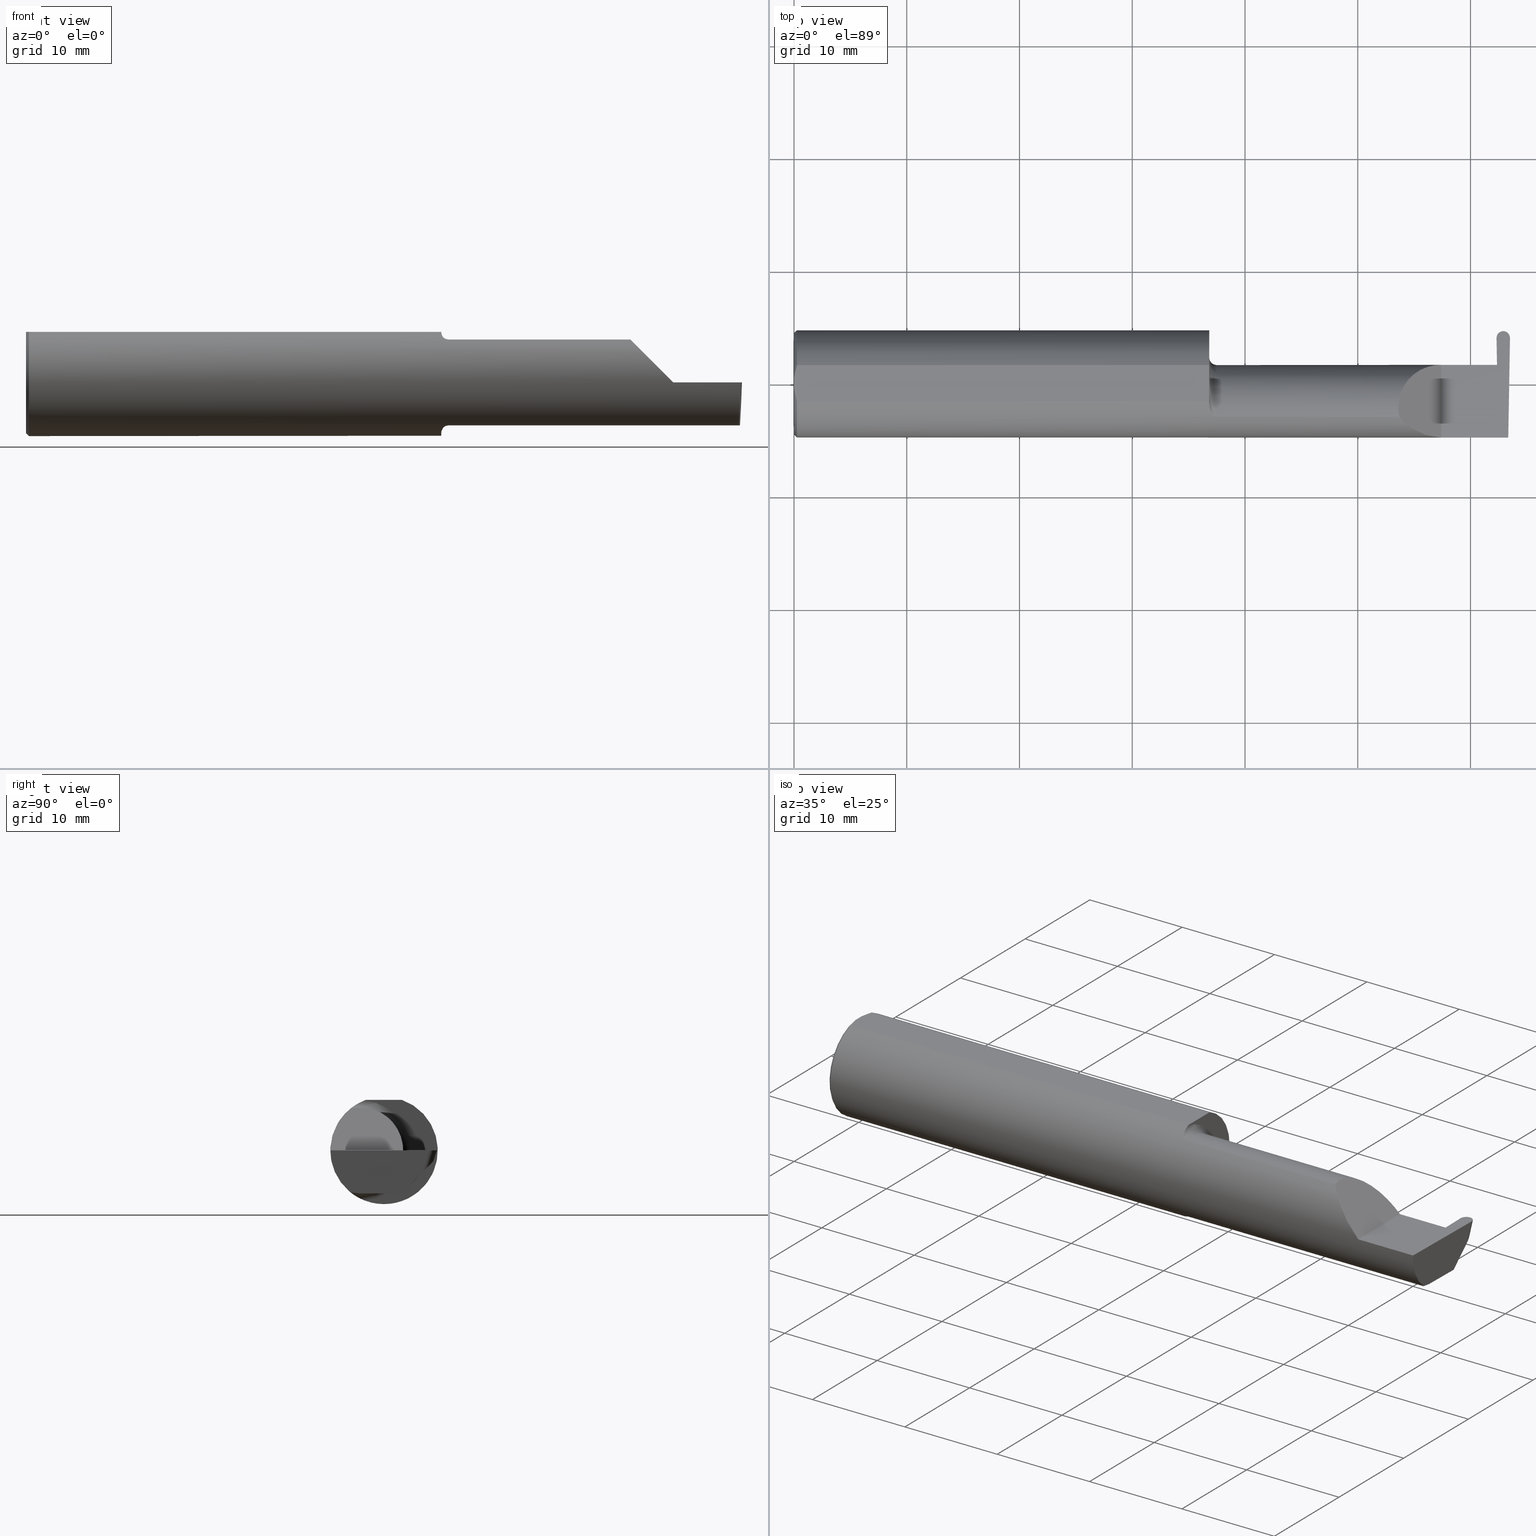
[diagram: canonical four-view strip — front | top / right | iso, engineering-drawing reading convention]
A machine part, canonical four-view strip (front | top / right | iso — engineering-drawing reading convention). The complete STEP part file that produces these views, byte-faithful:
ISO-10303-21;
HEADER;
FILE_DESCRIPTION (( 'STEP AP203' ),
    '1' );
FILE_NAME ('222110-GFR046-16.STEP',
    '2024-06-21T22:54:51',
    ( '' ),
    ( '' ),
    'SwSTEP 2.0',
    'SolidWorks 2022',
    '' );
FILE_SCHEMA (( 'CONFIG_CONTROL_DESIGN' ));
ENDSEC;

DATA;
#1 = ORIENTED_EDGE ( 'NONE', *, *, #245, .F. ) ;
#2 = EDGE_CURVE ( 'NONE', #489, #502, #172, .T. ) ;
#3 = DIRECTION ( 'NONE',  ( 0.000000000000000000, -0.03489949670250104552, -0.9993908270190957621 ) ) ;
#4 = DIRECTION ( 'NONE',  ( 0.000000000000000000, 1.000000000000000000, 0.000000000000000000 ) ) ;
#5 = ORIENTED_EDGE ( 'NONE', *, *, #625, .F. ) ;
#6 = FACE_OUTER_BOUND ( 'NONE', #439, .T. ) ;
#7 = CARTESIAN_POINT ( 'NONE',  ( 0.000000000000000000, 0.000000000000000000, 0.000000000000000000 ) ) ;
#8 = CARTESIAN_POINT ( 'NONE',  ( 2.499991330919623778, 0.1598853660763216722, 0.0002712393593816795224 ) ) ;
#9 = LINE ( 'NONE', #81, #149 ) ;
#10 = PLANE ( 'NONE',  #147 ) ;
#11 = CC_DESIGN_APPROVAL ( #573, ( #691 ) ) ;
#12 = LINE ( 'NONE', #443, #138 ) ;
#13 = PLANE ( 'NONE',  #49 ) ;
#14 = EDGE_CURVE ( 'NONE', #25, #652, #151, .T. ) ;
#15 = CIRCLE ( 'NONE', #602, 0.1873499999999999888 ) ;
#16 = FACE_OUTER_BOUND ( 'NONE', #305, .T. ) ;
#17 = DIRECTION ( 'NONE',  ( 0.000000000000000000, 0.000000000000000000, -1.000000000000000000 ) ) ;
#18 = LOCAL_TIME ( 15, 54, 51.00000000000000000, #249 ) ;
#19 = CARTESIAN_POINT ( 'NONE',  ( 2.460115337567889249, -0.08334999999999999354, -0.1499999999999999944 ) ) ;
#20 = EDGE_CURVE ( 'NONE', #332, #65, #523, .T. ) ;
#21 = CARTESIAN_POINT ( 'NONE',  ( 0.01000000000000013205, 0.000000000000000000, 0.000000000000000000 ) ) ;
#22 = APPROVAL_ROLE ( '' ) ;
#23 = CARTESIAN_POINT ( 'NONE',  ( 1.465004157323697376, -0.1137044537483316020, 0.1489098419202428691 ) ) ;
#24 = APPROVAL ( #465, 'UNSPECIFIED' ) ;
#25 = VERTEX_POINT ( 'NONE', #195 ) ;
#26 = CARTESIAN_POINT ( 'NONE',  ( 2.490497255146305822, -0.08335000000000003517, -0.1500000000000000500 ) ) ;
#27 = CARTESIAN_POINT ( 'NONE',  ( 1.450000000000000178, 0.000000000000000000, 0.000000000000000000 ) ) ;
#28 = ORIENTED_EDGE ( 'NONE', *, *, #253, .T. ) ;
#29 = DATE_AND_TIME ( #197, #18 ) ;
#30 = AXIS2_PLACEMENT_3D ( 'NONE', #290, #546, #237 ) ;
#31 = VERTEX_POINT ( 'NONE', #35 ) ;
#32 = VECTOR ( 'NONE', #115, 39.37007874015748143 ) ;
#33 = APPLICATION_PROTOCOL_DEFINITION ( 'international standard', 'config_control_design', 1994, #429 ) ;
#34 = EDGE_LOOP ( 'NONE', ( #569, #333, #54, #383, #282, #417 ) ) ;
#35 = CARTESIAN_POINT ( 'NONE',  ( 1.474999999999999867, -0.1172600179964005812, -0.1461167706989303650 ) ) ;
#36 = PERSON_AND_ORGANIZATION_ROLE ( 'design_owner' ) ;
#37 = EDGE_CURVE ( 'NONE', #70, #580, #574, .T. ) ;
#38 = ORIENTED_EDGE ( 'NONE', *, *, #693, .T. ) ;
#39 = EDGE_CURVE ( 'NONE', #31, #238, #110, .T. ) ;
#40 = EDGE_CURVE ( 'NONE', #251, #424, #516, .T. ) ;
#41 = CARTESIAN_POINT ( 'NONE',  ( 1.450000000000000178, -0.06851976604679066440, -0.1743704796142198643 ) ) ;
#42 = ORIENTED_EDGE ( 'NONE', *, *, #345, .T. ) ;
#43 = CC_DESIGN_PERSON_AND_ORGANIZATION_ASSIGNMENT ( #405, #304, ( #375 ) ) ;
#44 = ORIENTED_EDGE ( 'NONE', *, *, #430, .T. ) ;
#45 = CARTESIAN_POINT ( 'NONE',  ( 2.490571174359867967, -0.07911517109126280090, -0.1500000000000000500 ) ) ;
#46 = CARTESIAN_POINT ( 'NONE',  ( 0.000000000000000000, 0.000000000000000000, 0.000000000000000000 ) ) ;
#47 = VERTEX_POINT ( 'NONE', #463 ) ;
#48 = AXIS2_PLACEMENT_3D ( 'NONE', #232, #188, #558 ) ;
#49 = AXIS2_PLACEMENT_3D ( 'NONE', #229, #224, #665 ) ;
#50 = PLANE ( 'NONE',  #699 ) ;
#51 = ORIENTED_EDGE ( 'NONE', *, *, #95, .T. ) ;
#52 = DIRECTION ( 'NONE',  ( 0.000000000000000000, -1.000000000000000000, 0.000000000000000000 ) ) ;
#53 = CARTESIAN_POINT ( 'NONE',  ( -0.001039370078739994957, 0.1846500000000000363, 0.000000000000000000 ) ) ;
#54 = ORIENTED_EDGE ( 'NONE', *, *, #514, .T. ) ;
#55 = CARTESIAN_POINT ( 'NONE',  ( 2.454605571778825102, 0.06664999999999998703, 0.000000000000000000 ) ) ;
#56 = CARTESIAN_POINT ( 'NONE',  ( 2.260000000000000231, -0.1873499999999999888, 2.939152317953647352E-17 ) ) ;
#57 = UNCERTAINTY_MEASURE_WITH_UNIT (LENGTH_MEASURE( 1.000000000000000082E-05 ), #171, 'distance_accuracy_value', 'NONE');
#58 = CARTESIAN_POINT ( 'NONE',  ( 2.472512750841366902, 0.1918129394110904828, 0.09809285817454170553 ) ) ;
#59 = VECTOR ( 'NONE', #547, 39.37007874015748143 ) ;
#60 = ORIENTED_EDGE ( 'NONE', *, *, #196, .T. ) ;
#61 = DIRECTION ( 'NONE',  ( 0.000000000000000000, 0.000000000000000000, -1.000000000000000000 ) ) ;
#62 = VECTOR ( 'NONE', #108, 39.37007874015748854 ) ;
#63 = CARTESIAN_POINT ( 'NONE',  ( 1.452945243422983035, -0.09312071749437417223, 0.1626553472577906556 ) ) ;
#64 = FACE_OUTER_BOUND ( 'NONE', #564, .T. ) ;
#65 = VERTEX_POINT ( 'NONE', #682 ) ;
#66 = ORIENTED_EDGE ( 'NONE', *, *, #2, .T. ) ;
#67 = DIRECTION ( 'NONE',  ( -0.000000000000000000, 1.000000000000000000, -0.000000000000000000 ) ) ;
#68 = CARTESIAN_POINT ( 'NONE',  ( 2.476480000000000459, 0.1722500154617881696, -0.03805303608136137439 ) ) ;
#69 = ADVANCED_FACE ( 'NONE', ( #686 ), #13, .T. ) ;
#70 = VERTEX_POINT ( 'NONE', #548 ) ;
#71 = DIRECTION ( 'NONE',  ( 5.107097978105302334E-17, -1.000000000000000000, 0.000000000000000000 ) ) ;
#72 = PLANE ( 'NONE',  #30 ) ;
#73 = DIRECTION ( 'NONE',  ( -1.000000000000000000, -0.000000000000000000, -0.000000000000000000 ) ) ;
#74 = VECTOR ( 'NONE', #452, 39.37007874015748854 ) ;
#75 = CARTESIAN_POINT ( 'NONE',  ( 2.459937291069381970, 0.06030305154315083321, -0.1499999999999999944 ) ) ;
#76 = CARTESIAN_POINT ( 'NONE',  ( 1.458475602106621638, -0.1064978748893405519, 0.1542035505680384444 ) ) ;
#77 = CC_DESIGN_APPROVAL ( #24, ( #132 ) ) ;
#78 = VERTEX_POINT ( 'NONE', #479 ) ;
#79 = CIRCLE ( 'NONE', #535, 0.1773499999999999521 ) ;
#80 = LINE ( 'NONE', #8, #588 ) ;
#81 = CARTESIAN_POINT ( 'NONE',  ( 2.472512750841366902, 0.2141627675440266054, 0.09083095880673042188 ) ) ;
#82 = EDGE_LOOP ( 'NONE', ( #666, #38, #638, #28, #582 ) ) ;
#83 =( BOUNDED_CURVE ( )  B_SPLINE_CURVE ( 3, ( #559, #386, #186, #26 ),
 .UNSPECIFIED., .F., .T. ) 
 B_SPLINE_CURVE_WITH_KNOTS ( ( 4, 4 ),
 ( 0.2354267821558766738, 0.4634648172053205673 ),
 .UNSPECIFIED. ) 
 CURVE ( )  GEOMETRIC_REPRESENTATION_ITEM ( )  RATIONAL_B_SPLINE_CURVE ( ( 1.000000000000000000, 0.9956712472009929815, 0.9956712472009929815, 1.000000000000000000 ) ) 
 REPRESENTATION_ITEM ( '' )  );
#84 = APPROVAL_ROLE ( '' ) ;
#85 = ORIENTED_EDGE ( 'NONE', *, *, #444, .F. ) ;
#86 = DIRECTION ( 'NONE',  ( -0.01745240643727800564, 0.9998476951563912696, -0.000000000000000000 ) ) ;
#87 = APPLICATION_PROTOCOL_DEFINITION ( 'international standard', 'config_control_design', 1994, #399 ) ;
#88 = VECTOR ( 'NONE', #620, 39.37007874015748854 ) ;
#89 = VECTOR ( 'NONE', #488, 39.37007874015748143 ) ;
#90 = CARTESIAN_POINT ( 'NONE',  ( 2.113883229301068312, -0.1172600179964011224, 0.1461167706989300596 ) ) ;
#91 = APPROVAL_STATUS ( 'not_yet_approved' ) ;
#92 = EDGE_CURVE ( 'NONE', #65, #489, #177, .T. ) ;
#93 = CARTESIAN_POINT ( 'NONE',  ( 1.458439486659307338, -0.1064616213911158682, -0.1542305641651500470 ) ) ;
#94 = PERSON_AND_ORGANIZATION_ROLE ( 'creator' ) ;
#95 = EDGE_CURVE ( 'NONE', #122, #191, #79, .T. ) ;
#96 = ORIENTED_EDGE ( 'NONE', *, *, #514, .F. ) ;
#97 = CARTESIAN_POINT ( 'NONE',  ( 1.452960551809340473, -0.09317341542745746774, -0.1626248379125196930 ) ) ;
#98 = APPROVAL ( #91, 'UNSPECIFIED' ) ;
#99 = ORIENTED_EDGE ( 'NONE', *, *, #126, .F. ) ;
#100 = ORIENTED_EDGE ( 'NONE', *, *, #37, .F. ) ;
#101 = CARTESIAN_POINT ( 'NONE',  ( 2.476480000000000459, 0.1722500154617881696, -0.03805303608136137439 ) ) ;
#102 = ORIENTED_EDGE ( 'NONE', *, *, #370, .F. ) ;
#103 = CARTESIAN_POINT ( 'NONE',  ( 2.452725869110807366, 0.1743380937279881138, 2.910889271442055903E-18 ) ) ;
#104 = CC_DESIGN_SECURITY_CLASSIFICATION ( #691, ( #375 ) ) ;
#105 = ORIENTED_EDGE ( 'NONE', *, *, #670, .F. ) ;
#106 = VECTOR ( 'NONE', #532, 39.37007874015748854 ) ;
#107 = CARTESIAN_POINT ( 'NONE',  ( 2.493920841729410753, -0.1873499999999999888, 0.000000000000000000 ) ) ;
#108 = DIRECTION ( 'NONE',  ( -0.001239419280281356568, 0.9999992319196288060, -7.696171051551530993E-21 ) ) ;
#109 = ORIENTED_EDGE ( 'NONE', *, *, #95, .F. ) ;
#110 = B_SPLINE_CURVE_WITH_KNOTS ( 'NONE', 3,
 ( #407, #466, #687, #412, #355, #93, #627, #97, #626, #193, #307, #41 ),
 .UNSPECIFIED., .F., .F.,
 ( 4, 2, 2, 2, 2, 4 ),
 ( 1.967976973658592312E-07, 0.0002120314145722273266, 0.0004238660314470887587, 0.0008475352651967989377, 0.001271204498946509279, 0.001694873732696219621 ),
 .UNSPECIFIED. ) ;
#111 = ADVANCED_FACE ( 'NONE', ( #264 ), #50, .F. ) ;
#112 = CARTESIAN_POINT ( 'NONE',  ( 0.000000000000000000, 0.000000000000000000, 0.000000000000000000 ) ) ;
#113 = DIRECTION ( 'NONE',  ( -1.000000000000000000, -0.000000000000000000, -0.000000000000000000 ) ) ;
#114 = EDGE_CURVE ( 'NONE', #78, #278, #483, .T. ) ;
#115 = DIRECTION ( 'NONE',  ( -0.000000000000000000, 1.000000000000000000, -0.000000000000000000 ) ) ;
#116 = ORIENTED_EDGE ( 'NONE', *, *, #306, .F. ) ;
#117 = B_SPLINE_CURVE_WITH_KNOTS ( 'NONE', 3,
 ( #396, #280, #605, #615 ),
 .UNSPECIFIED., .F., .F.,
 ( 4, 4 ),
 ( 0.000000000000000000, 1.000000000000000000 ),
 .UNSPECIFIED. ) ;
#118 = DIRECTION ( 'NONE',  ( -0.03549161113179515048, 0.03487750912278131388, 0.9987611851171729338 ) ) ;
#119 = CARTESIAN_POINT ( 'NONE',  ( 1.450353553376444893, -0.07868116735658675642, 0.1701139256562800572 ) ) ;
#120 = CARTESIAN_POINT ( 'NONE',  ( 0.005151108632379722968, -0.04888864921576022843, 0.1763499999999999235 ) ) ;
#121 = AXIS2_PLACEMENT_3D ( 'NONE', #27, #454, #673 ) ;
#122 = VERTEX_POINT ( 'NONE', #530 ) ;
#123 = LINE ( 'NONE', #384, #347 ) ;
#124 = AXIS2_PLACEMENT_3D ( 'NONE', #377, #221, #154 ) ;
#125 = LINE ( 'NONE', #335, #88 ) ;
#126 = EDGE_CURVE ( 'NONE', #203, #332, #700, .T. ) ;
#127 = EDGE_LOOP ( 'NONE', ( #291, #256, #492, #265 ) ) ;
#128 = CARTESIAN_POINT ( 'NONE',  ( 2.260000000000000231, -0.1873499999999999888, 2.939152317953647352E-17 ) ) ;
#129 = APPROVAL_DATE_TIME ( #614, #573 ) ;
#130 = DIRECTION ( 'NONE',  ( -0.7071067811865509034, 0.000000000000000000, 0.7071067811865440200 ) ) ;
#131 = LINE ( 'NONE', #234, #648 ) ;
#132 = PRODUCT_DEFINITION ( 'UNKNOWN', '', #375, #226 ) ;
#133 = CARTESIAN_POINT ( 'NONE',  ( 2.496943030093102145, 0.1354885203010862682, -0.07481453124206370597 ) ) ;
#134 = CARTESIAN_POINT ( 'NONE',  ( 2.473071381531744883, 0.1327807391157157513, -0.08358957283776476122 ) ) ;
#135 = FACE_OUTER_BOUND ( 'NONE', #34, .T. ) ;
#136 = ORIENTED_EDGE ( 'NONE', *, *, #308, .T. ) ;
#137 = CARTESIAN_POINT ( 'NONE',  ( 2.733184360054361939, -0.08335000000000003517, -0.1500000000000000500 ) ) ;
#138 = VECTOR ( 'NONE', #336, 39.37007874015748143 ) ;
#139 = CARTESIAN_POINT ( 'NONE',  ( 2.499980319257137484, 0.1597972350660649687, 0.000000000000000000 ) ) ;
#140 = COORDINATED_UNIVERSAL_TIME_OFFSET ( 8, 0, .BEHIND. ) ;
#141 = DIRECTION ( 'NONE',  ( 1.000000000000000000, 0.000000000000000000, -0.000000000000000000 ) ) ;
#142 = ORIENTED_EDGE ( 'NONE', *, *, #537, .F. ) ;
#143 = PERSON_AND_ORGANIZATION_ROLE ( 'classification_officer' ) ;
#144 = CARTESIAN_POINT ( 'NONE',  ( 2.452963582209922055, 0.1607195194005952010, 0.000000000000000000 ) ) ;
#145 = VERTEX_POINT ( 'NONE', #161 ) ;
#146 = CALENDAR_DATE ( 2024, 21, 6 ) ;
#147 = AXIS2_PLACEMENT_3D ( 'NONE', #7, #284, #184 ) ;
#148 = EDGE_CURVE ( 'NONE', #259, #25, #246, .T. ) ;
#149 = VECTOR ( 'NONE', #338, 39.37007874015748854 ) ;
#150 = ORIENTED_EDGE ( 'NONE', *, *, #469, .T. ) ;
#151 =( BOUNDED_CURVE ( )  B_SPLINE_CURVE ( 3, ( #90, #683, #520, #464 ),
 .UNSPECIFIED., .F., .F. ) 
 B_SPLINE_CURVE_WITH_KNOTS ( ( 4, 4 ),
 ( 6.055147272130139591, 7.853981633974482790 ),
 .UNSPECIFIED. ) 
 CURVE ( )  GEOMETRIC_REPRESENTATION_ITEM ( )  RATIONAL_B_SPLINE_CURVE ( ( 1.000000000000000000, 0.7480442670255260662, 0.7480442670255260662, 1.000000000000000000 ) ) 
 REPRESENTATION_ITEM ( '' )  );
#152 = CIRCLE ( 'NONE', #544, 0.1873499999999999888 ) ;
#153 = AXIS2_PLACEMENT_3D ( 'NONE', #173, #639, #428 ) ;
#154 = DIRECTION ( 'NONE',  ( -1.000000000000000000, 0.000000000000000000, 1.224646799147353947E-16 ) ) ;
#155 = EDGE_LOOP ( 'NONE', ( #102, #474, #415, #704 ) ) ;
#156 = DIRECTION ( 'NONE',  ( 0.000000000000000000, -0.9510565162951534202, 0.3090169943749480619 ) ) ;
#157 = CARTESIAN_POINT ( 'NONE',  ( 0.01000000000000013205, -0.06325108694718235836, 0.1763499999999999235 ) ) ;
#158 = ORIENTED_EDGE ( 'NONE', *, *, #212, .T. ) ;
#159 = DIRECTION ( 'NONE',  ( 1.000000000000000000, 9.674096982053045718E-15, -0.000000000000000000 ) ) ;
#160 = ADVANCED_FACE ( 'NONE', ( #381 ), #218, .T. ) ;
#161 = CARTESIAN_POINT ( 'NONE',  ( 1.474999999999999867, -0.1172600179964005812, 0.1461167706989303927 ) ) ;
#162 = ORIENTED_EDGE ( 'NONE', *, *, #565, .F. ) ;
#163 = VECTOR ( 'NONE', #285, 39.37007874015748143 ) ;
#164 = DIRECTION ( 'NONE',  ( -0.03701368837992397021, -0.7066222423871549863, -0.7066222423871630909 ) ) ;
#165 = VECTOR ( 'NONE', #667, 39.37007874015748143 ) ;
#166 = CARTESIAN_POINT ( 'NONE',  ( 2.476200268257601422, 0.1846500000000000363, 0.000000000000000000 ) ) ;
#167 = EDGE_CURVE ( 'NONE', #274, #251, #589, .T. ) ;
#168 = CARTESIAN_POINT ( 'NONE',  ( 0.01000000000000013205, -0.06325108694718235836, 0.1763499999999999235 ) ) ;
#169 = VERTEX_POINT ( 'NONE', #157 ) ;
#170 = DIRECTION ( 'NONE',  ( 0.000000000000000000, 0.000000000000000000, -1.000000000000000000 ) ) ;
#171 =( CONVERSION_BASED_UNIT ( 'INCH', #276 ) LENGTH_UNIT ( ) NAMED_UNIT ( #577 ) );
#172 =( BOUNDED_CURVE ( )  B_SPLINE_CURVE ( 3, ( #230, #608, #612, #133 ),
 .UNSPECIFIED., .F., .T. ) 
 B_SPLINE_CURVE_WITH_KNOTS ( ( 4, 4 ),
 ( 3.175776140005400983, 4.698536687208078710 ),
 .UNSPECIFIED. ) 
 CURVE ( )  GEOMETRIC_REPRESENTATION_ITEM ( )  RATIONAL_B_SPLINE_CURVE ( ( 1.000000000000000000, 0.8159229469975433080, 0.8159229469975433080, 1.000000000000000000 ) ) 
 REPRESENTATION_ITEM ( '' )  );
#173 = CARTESIAN_POINT ( 'NONE',  ( 1.450000000000000178, -0.08335000000000004905, 0.000000000000000000 ) ) ;
#174 = ORIENTED_EDGE ( 'NONE', *, *, #14, .F. ) ;
#175 = CARTESIAN_POINT ( 'NONE',  ( 0.000000000000000000, 0.000000000000000000, -0.1773499999999999521 ) ) ;
#176 = CARTESIAN_POINT ( 'NONE',  ( 1.474999999999999867, -0.1172600179964005812, 0.1461167706989303927 ) ) ;
#177 =( BOUNDED_CURVE ( )  B_SPLINE_CURVE ( 3, ( #210, #581, #584, #365 ),
 .UNSPECIFIED., .F., .F. ) 
 B_SPLINE_CURVE_WITH_KNOTS ( ( 4, 4 ),
 ( 1.570796326794878794, 1.624635715067310082 ),
 .UNSPECIFIED. ) 
 CURVE ( )  GEOMETRIC_REPRESENTATION_ITEM ( )  RATIONAL_B_SPLINE_CURVE ( ( 1.000000000000000000, 0.9997584579429215079, 0.9997584579429215079, 1.000000000000000000 ) ) 
 REPRESENTATION_ITEM ( '' )  );
#178 = CARTESIAN_POINT ( 'NONE',  ( 0.000000000000000000, 0.06325108694718235836, 0.1763499999999999235 ) ) ;
#179 = ORIENTED_EDGE ( 'NONE', *, *, #311, .T. ) ;
#180 = AXIS2_PLACEMENT_3D ( 'NONE', #134, #557, #236 ) ;
#181 = FACE_OUTER_BOUND ( 'NONE', #633, .T. ) ;
#182 = LINE ( 'NONE', #393, #74 ) ;
#183 = CARTESIAN_POINT ( 'NONE',  ( 2.476759731742398163, 0.1846500000000000363, 0.000000000000000000 ) ) ;
#184 = DIRECTION ( 'NONE',  ( 0.000000000000000000, 0.000000000000000000, -1.000000000000000000 ) ) ;
#185 = ORIENTED_EDGE ( 'NONE', *, *, #357, .F. ) ;
#186 = CARTESIAN_POINT ( 'NONE',  ( 2.490297801769516539, -0.09477667630339423055, -0.1499999999999999944 ) ) ;
#187 = CARTESIAN_POINT ( 'NONE',  ( 1.450000000000000178, -0.08335000000000004905, 0.000000000000000000 ) ) ;
#188 = DIRECTION ( 'NONE',  ( -0.9992386149554827179, 0.01744177490282240728, 0.03489949670250104552 ) ) ;
#189 = ADVANCED_FACE ( 'NONE', ( #594 ), #368, .F. ) ;
#190 = PLANE ( 'NONE',  #361 ) ;
#191 = VERTEX_POINT ( 'NONE', #323 ) ;
#192 = EDGE_CURVE ( 'NONE', #681, #489, #294, .T. ) ;
#193 = CARTESIAN_POINT ( 'NONE',  ( 1.450358271039144054, -0.07873626113568082951, -0.1700887912276896341 ) ) ;
#194 = ORIENTED_EDGE ( 'NONE', *, *, #468, .T. ) ;
#195 = CARTESIAN_POINT ( 'NONE',  ( 2.113883229301068312, -0.1172600179964011224, 0.1461167706989300596 ) ) ;
#196 = EDGE_CURVE ( 'NONE', #122, #360, #596, .T. ) ;
#197 = CALENDAR_DATE ( 2024, 21, 6 ) ;
#198 = ORIENTED_EDGE ( 'NONE', *, *, #586, .T. ) ;
#199 = CARTESIAN_POINT ( 'NONE',  ( 2.473071381531744883, 0.1551305672486518739, -0.09085147220557604486 ) ) ;
#200 = CALENDAR_DATE ( 2024, 21, 6 ) ;
#201 = VECTOR ( 'NONE', #73, 39.37007874015748143 ) ;
#202 = CC_DESIGN_APPROVAL ( #98, ( #375 ) ) ;
#203 = VERTEX_POINT ( 'NONE', #166 ) ;
#204 = EDGE_LOOP ( 'NONE', ( #162, #495, #179, #707, #185, #590, #205, #1, #389, #211, #96, #5, #220 ) ) ;
#205 = ORIENTED_EDGE ( 'NONE', *, *, #392, .F. ) ;
#206 = CARTESIAN_POINT ( 'NONE',  ( 1.450000000000000178, 0.000000000000000000, 0.000000000000000000 ) ) ;
#207 = CARTESIAN_POINT ( 'NONE',  ( -0.001039370078739994957, 0.1723030515431495657, -0.03799999999999999906 ) ) ;
#208 = ORIENTED_EDGE ( 'NONE', *, *, #491, .F. ) ;
#209 = CARTESIAN_POINT ( 'NONE',  ( 2.490040979592266890, -0.1172600179964006090, -0.1461167706989303650 ) ) ;
#210 = CARTESIAN_POINT ( 'NONE',  ( 2.476480000000000015, 0.1824111880958903253, -0.006890354540110450732 ) ) ;
#211 = ORIENTED_EDGE ( 'NONE', *, *, #622, .T. ) ;
#212 = EDGE_CURVE ( 'NONE', #274, #476, #545, .T. ) ;
#213 = CYLINDRICAL_SURFACE ( 'NONE', #409, 0.02350000000000000352 ) ;
#214 = ADVANCED_FACE ( 'NONE', ( #706 ), #449, .T. ) ;
#215 = CARTESIAN_POINT ( 'NONE',  ( 2.454605571778825102, 0.06664999999999998703, 0.000000000000000000 ) ) ;
#216 = ADVANCED_FACE ( 'NONE', ( #6 ), #533, .F. ) ;
#217 = DIRECTION ( 'NONE',  ( 1.000000000000000000, 0.000000000000000000, 0.000000000000000000 ) ) ;
#218 = CYLINDRICAL_SURFACE ( 'NONE', #388, 0.1873499999999999888 ) ;
#219 = CARTESIAN_POINT ( 'NONE',  ( 2.447545874117295739, 0.06664999999999991764, 0.000000000000000000 ) ) ;
#220 = ORIENTED_EDGE ( 'NONE', *, *, #39, .F. ) ;
#221 = DIRECTION ( 'NONE',  ( -1.224646799147353947E-16, 0.000000000000000000, -1.000000000000000000 ) ) ;
#222 = CARTESIAN_POINT ( 'NONE',  ( 1.472161949849308371, -0.1172600179964060768, 0.1461167706989261184 ) ) ;
#223 = DIRECTION ( 'NONE',  ( 0.03858184836401778312, 0.3087869137032490108, 0.9503484007996426675 ) ) ;
#224 = DIRECTION ( 'NONE',  ( 1.000000000000000000, 5.107097978105302334E-17, 0.000000000000000000 ) ) ;
#225 = CARTESIAN_POINT ( 'NONE',  ( 2.454977397848501219, 0.06628460753894979685, -0.01046347106162132459 ) ) ;
#226 = DESIGN_CONTEXT ( 'detailed design', #429, 'design' ) ;
#227 = CARTESIAN_POINT ( 'NONE',  ( 2.876828993045917215, 0.1873499999999998500, 0.1763499999999999235 ) ) ;
#228 = DIRECTION ( 'NONE',  ( 1.000000000000000000, 0.000000000000000000, -0.000000000000000000 ) ) ;
#229 = CARTESIAN_POINT ( 'NONE',  ( 1.450000000000000178, 0.1873499999999998500, 0.000000000000000000 ) ) ;
#230 = CARTESIAN_POINT ( 'NONE',  ( 2.476480000000000459, 0.1722500154617881696, -0.03805303608136137439 ) ) ;
#231 = CARTESIAN_POINT ( 'NONE',  ( 2.454605571778825102, 0.06664999999999998703, 0.000000000000000000 ) ) ;
#232 = CARTESIAN_POINT ( 'NONE',  ( 2.499996417790078862, 0.1607195194005952565, 0.000000000000000000 ) ) ;
#233 = ORIENTED_EDGE ( 'NONE', *, *, #92, .F. ) ;
#234 = CARTESIAN_POINT ( 'NONE',  ( 2.450725024758243720, 0.2365161755066116367, 0.02621312396346279702 ) ) ;
#235 = ADVANCED_FACE ( 'NONE', ( #16 ), #481, .F. ) ;
#236 = DIRECTION ( 'NONE',  ( 0.000000000000000000, 0.9510565162951534202, -0.3090169943749478398 ) ) ;
#237 = DIRECTION ( 'NONE',  ( 0.03490480639812536257, 0.000000000000000000, -0.9993906415863165194 ) ) ;
#238 = VERTEX_POINT ( 'NONE', #390 ) ;
#239 = LINE ( 'NONE', #292, #163 ) ;
#240 = DIRECTION ( 'NONE',  ( 0.000000000000000000, -0.3090169943749481729, -0.9510565162951533091 ) ) ;
#241 = ORIENTED_EDGE ( 'NONE', *, *, #537, .T. ) ;
#242 = EDGE_CURVE ( 'NONE', #169, #451, #692, .T. ) ;
#243 = EDGE_LOOP ( 'NONE', ( #679, #297, #268, #44 ) ) ;
#244 = AXIS2_PLACEMENT_3D ( 'NONE', #316, #595, #702 ) ;
#245 = EDGE_CURVE ( 'NONE', #169, #419, #283, .T. ) ;
#246 =( BOUNDED_CURVE ( )  B_SPLINE_CURVE ( 3, ( #56, #328, #372, #267 ),
 .UNSPECIFIED., .F., .F. ) 
 B_SPLINE_CURVE_WITH_KNOTS ( ( 4, 4 ),
 ( 4.712388980384688786, 5.606916381293133966 ),
 .UNSPECIFIED. ) 
 CURVE ( )  GEOMETRIC_REPRESENTATION_ITEM ( )  RATIONAL_B_SPLINE_CURVE ( ( 1.000000000000000000, 0.9344226172588806500, 0.9344226172588806500, 1.000000000000000000 ) ) 
 REPRESENTATION_ITEM ( '' )  );
#247 = CARTESIAN_POINT ( 'NONE',  ( 2.499996417790078862, 0.1607195194005952565, 0.000000000000000000 ) ) ;
#248 = DIRECTION ( 'NONE',  ( -0.01745240643727575397, -0.9998476951563912696, 0.000000000000000000 ) ) ;
#249 = COORDINATED_UNIVERSAL_TIME_OFFSET ( 8, 0, .BEHIND. ) ;
#250 = AXIS2_PLACEMENT_3D ( 'NONE', #112, #482, #320 ) ;
#251 = VERTEX_POINT ( 'NONE', #231 ) ;
#252 = VECTOR ( 'NONE', #672, 39.37007874015748143 ) ;
#253 = EDGE_CURVE ( 'NONE', #484, #274, #609, .T. ) ;
#254 = ORIENTED_EDGE ( 'NONE', *, *, #468, .F. ) ;
#255 = ORIENTED_EDGE ( 'NONE', *, *, #192, .F. ) ;
#256 = ORIENTED_EDGE ( 'NONE', *, *, #253, .F. ) ;
#257 = CARTESIAN_POINT ( 'NONE',  ( 0.000000000000000000, -0.01880691362238934641, 0.1763499999999999235 ) ) ;
#258 = DIRECTION ( 'NONE',  ( 0.000000000000000000, -0.7071067811865434649, -0.7071067811865515695 ) ) ;
#259 = VERTEX_POINT ( 'NONE', #128 ) ;
#260 =( GEOMETRIC_REPRESENTATION_CONTEXT ( 3 ) GLOBAL_UNCERTAINTY_ASSIGNED_CONTEXT ( ( #57 ) ) GLOBAL_UNIT_ASSIGNED_CONTEXT ( ( #171, #499, #350 ) ) REPRESENTATION_CONTEXT ( 'NONE', 'WORKASPACE' ) );
#261 = CARTESIAN_POINT ( 'NONE',  ( 1.474999999999999867, -0.08335000000000004905, 0.000000000000000000 ) ) ;
#262 = AXIS2_PLACEMENT_3D ( 'NONE', #187, #400, #619 ) ;
#263 = EDGE_CURVE ( 'NONE', #70, #332, #314, .T. ) ;
#264 = FACE_OUTER_BOUND ( 'NONE', #695, .T. ) ;
#265 = ORIENTED_EDGE ( 'NONE', *, *, #114, .F. ) ;
#266 = LINE ( 'NONE', #137, #201 ) ;
#267 = CARTESIAN_POINT ( 'NONE',  ( 2.113883229301068312, -0.1172600179964011224, 0.1461167706989300596 ) ) ;
#268 = ORIENTED_EDGE ( 'NONE', *, *, #491, .T. ) ;
#269 = DIRECTION ( 'NONE',  ( 1.000000000000000000, 5.107097978105302334E-17, 0.000000000000000000 ) ) ;
#270 = ORIENTED_EDGE ( 'NONE', *, *, #293, .F. ) ;
#271 = CARTESIAN_POINT ( 'NONE',  ( 0.001616639753276021213, 0.03405189565400638246, 0.1763499999999999235 ) ) ;
#272 = DIRECTION ( 'NONE',  ( 0.000000000000000000, 0.000000000000000000, -1.000000000000000000 ) ) ;
#273 = VECTOR ( 'NONE', #541, 39.37007874015748143 ) ;
#274 = VERTEX_POINT ( 'NONE', #225 ) ;
#275 = CARTESIAN_POINT ( 'NONE',  ( 1.449999999999998845, 0.06628460753895425162, -0.01046347106189551672 ) ) ;
#276 = LENGTH_MEASURE_WITH_UNIT ( LENGTH_MEASURE( 0.02539999999999999897 ), #515 );
#277 = CARTESIAN_POINT ( 'NONE',  ( 2.260000000000000231, -0.2500000000000000555, 2.939152317953647352E-17 ) ) ;
#278 = VERTEX_POINT ( 'NONE', #75 ) ;
#279 = LINE ( 'NONE', #295, #650 ) ;
#280 = CARTESIAN_POINT ( 'NONE',  ( 2.447302279143278358, 0.06640640502598227357, -0.006975647374414600636 ) ) ;
#281 = DIRECTION ( 'NONE',  ( 0.000000000000000000, 0.000000000000000000, 1.000000000000000000 ) ) ;
#282 = ORIENTED_EDGE ( 'NONE', *, *, #359, .F. ) ;
#283 = LINE ( 'NONE', #511, #630 ) ;
#284 = DIRECTION ( 'NONE',  ( 1.000000000000000000, 0.000000000000000000, 0.000000000000000000 ) ) ;
#285 = DIRECTION ( 'NONE',  ( 1.000000000000000000, -0.000000000000000000, -0.000000000000000000 ) ) ;
#286 = ADVANCED_FACE ( 'NONE', ( #346 ), #613, .T. ) ;
#287 = VECTOR ( 'NONE', #164, 39.37007874015748143 ) ;
#288 = LOCAL_TIME ( 15, 54, 51.00000000000000000, #688 ) ;
#289 = CARTESIAN_POINT ( 'NONE',  ( 2.490599447477928052, 0.1846499999999998420, -1.730980851401792408E-18 ) ) ;
#290 = CARTESIAN_POINT ( 'NONE',  ( 2.452963582209922055, 0.1607195194005952010, 0.000000000000000000 ) ) ;
#291 = ORIENTED_EDGE ( 'NONE', *, *, #522, .T. ) ;
#292 = CARTESIAN_POINT ( 'NONE',  ( -0.001039370078739994957, 0.06030305154315079852, -0.1500000000000000500 ) ) ;
#293 = EDGE_CURVE ( 'NONE', #191, #451, #603, .T. ) ;
#294 =( BOUNDED_CURVE ( )  B_SPLINE_CURVE ( 3, ( #703, #538, #496, #101 ),
 .UNSPECIFIED., .F., .T. ) 
 B_SPLINE_CURVE_WITH_KNOTS ( ( 4, 4 ),
 ( 4.726241273561298861, 6.249001820764003234 ),
 .UNSPECIFIED. ) 
 CURVE ( )  GEOMETRIC_REPRESENTATION_ITEM ( )  RATIONAL_B_SPLINE_CURVE ( ( 1.000000000000000000, 0.8159229469975370908, 0.8159229469975370908, 1.000000000000000000 ) ) 
 REPRESENTATION_ITEM ( '' )  );
#295 = CARTESIAN_POINT ( 'NONE',  ( 1.450000000000000178, 0.1873499999999997667, 0.1763499999999999235 ) ) ;
#296 = CARTESIAN_POINT ( 'NONE',  ( 1.451829077486400443, -0.08839624499054646312, 0.1652742498708037744 ) ) ;
#297 = ORIENTED_EDGE ( 'NONE', *, *, #114, .T. ) ;
#298 = COORDINATED_UNIVERSAL_TIME_OFFSET ( 8, 0, .BEHIND. ) ;
#299 = ORIENTED_EDGE ( 'NONE', *, *, #370, .T. ) ;
#300 = ORIENTED_EDGE ( 'NONE', *, *, #315, .T. ) ;
#301 = CLOSED_SHELL ( 'NONE', ( #214, #189, #160, #570, #216, #694, #640, #364, #235, #322, #69, #560, #698, #111, #591, #643, #341, #286, #378 ) ) ;
#302 = DIRECTION ( 'NONE',  ( -0.03858184836401777618, -0.3087869137032490663, -0.9503484007996426675 ) ) ;
#303 = PERSON_AND_ORGANIZATION_ROLE ( 'creator' ) ;
#304 = PERSON_AND_ORGANIZATION_ROLE ( 'design_supplier' ) ;
#305 = EDGE_LOOP ( 'NONE', ( #198, #309, #549, #116 ) ) ;
#306 = EDGE_CURVE ( 'NONE', #47, #238, #663, .T. ) ;
#307 = CARTESIAN_POINT ( 'NONE',  ( 1.449999999999999512, -0.07368234487347195827, -0.1723418180300747282 ) ) ;
#308 = EDGE_CURVE ( 'NONE', #65, #203, #9, .T. ) ;
#309 = ORIENTED_EDGE ( 'NONE', *, *, #442, .T. ) ;
#310 = EDGE_CURVE ( 'NONE', #419, #480, #279, .T. ) ;
#311 = EDGE_CURVE ( 'NONE', #580, #259, #123, .T. ) ;
#312 = CARTESIAN_POINT ( 'NONE',  ( 0.000000000000000000, 0.01880691362238934988, 0.1763499999999999235 ) ) ;
#313 = ORIENTED_EDGE ( 'NONE', *, *, #359, .T. ) ;
#314 =( BOUNDED_CURVE ( )  B_SPLINE_CURVE ( 3, ( #139, #554, #289, #183 ),
 .UNSPECIFIED., .F., .F. ) 
 B_SPLINE_CURVE_WITH_KNOTS ( ( 4, 4 ),
 ( 1.683182027770901534, 3.259781963246008996 ),
 .UNSPECIFIED. ) 
 CURVE ( )  GEOMETRIC_REPRESENTATION_ITEM ( )  RATIONAL_B_SPLINE_CURVE ( ( 1.000000000000000000, 0.8033679476376978101, 0.8033679476376978101, 1.000000000000000000 ) ) 
 REPRESENTATION_ITEM ( '' )  );
#315 = EDGE_CURVE ( 'NONE', #259, #652, #550, .T. ) ;
#316 = CARTESIAN_POINT ( 'NONE',  ( 2.460605367617270112, -2.397261968859201176, -0.08300305144819924985 ) ) ;
#317 = DIRECTION ( 'NONE',  ( -1.000000000000000000, -0.000000000000000000, -0.000000000000000000 ) ) ;
#318 = VERTEX_POINT ( 'NONE', #498 ) ;
#319 = ORGANIZATION ( 'UNSPECIFIED', 'UNSPECIFIED', '' ) ;
#320 = DIRECTION ( 'NONE',  ( 0.000000000000000000, 0.000000000000000000, -1.000000000000000000 ) ) ;
#321 = AXIS2_PLACEMENT_3D ( 'NONE', #637, #431, #3 ) ;
#322 = ADVANCED_FACE ( 'NONE', ( #659 ), #697, .T. ) ;
#323 = CARTESIAN_POINT ( 'NONE',  ( 0.000000000000000000, 0.000000000000000000, -0.1773499999999999521 ) ) ;
#324 = ORIENTED_EDGE ( 'NONE', *, *, #487, .T. ) ;
#325 = DIRECTION ( 'NONE',  ( 1.000000000000000000, 5.107097978105302334E-17, 0.000000000000000000 ) ) ;
#326 = CARTESIAN_POINT ( 'NONE',  ( 0.000000000000000000, 0.000000000000000000, 0.000000000000000000 ) ) ;
#327 = ORIENTED_EDGE ( 'NONE', *, *, #126, .T. ) ;
#328 = CARTESIAN_POINT ( 'NONE',  ( 2.202189699843947857, -0.1873500000000000165, 0.05781030015605082700 ) ) ;
#329 = CARTESIAN_POINT ( 'NONE',  ( 1.463163223656403167, -0.1119926267047277324, 0.1502091925606063028 ) ) ;
#330 = CARTESIAN_POINT ( 'NONE',  ( 0.001595548104417008695, -0.03385300050298640367, 0.1763499999999999235 ) ) ;
#331 = VECTOR ( 'NONE', #269, 39.37007874015748143 ) ;
#332 = VERTEX_POINT ( 'NONE', #382 ) ;
#333 = ORIENTED_EDGE ( 'NONE', *, *, #310, .T. ) ;
#334 = DIRECTION ( 'NONE',  ( -1.000000000000000000, -0.000000000000000000, -0.000000000000000000 ) ) ;
#335 = CARTESIAN_POINT ( 'NONE',  ( 2.452968669080377140, 0.1598853660763216722, 0.0002712393593816663493 ) ) ;
#336 = DIRECTION ( 'NONE',  ( 1.000000000000000000, 5.107097978105302334E-17, 0.000000000000000000 ) ) ;
#337 = ORIENTED_EDGE ( 'NONE', *, *, #14, .T. ) ;
#338 = DIRECTION ( 'NONE',  ( -0.03858184836401846313, 0.3087869137032490108, 0.9503484007996424454 ) ) ;
#339 = CARTESIAN_POINT ( 'NONE',  ( 0.01000000000000013205, 0.000000000000000000, 0.000000000000000000 ) ) ;
#340 = CARTESIAN_POINT ( 'NONE',  ( 2.459895087900160870, 0.06145200698433272296, -0.1488510445587935549 ) ) ;
#341 = ADVANCED_FACE ( 'NONE', ( #593 ), #542, .F. ) ;
#342 = EDGE_LOOP ( 'NONE', ( #553, #136, #327 ) ) ;
#343 = DIRECTION ( 'NONE',  ( 1.000000000000000000, 0.000000000000000000, 0.000000000000000000 ) ) ;
#344 = FACE_OUTER_BOUND ( 'NONE', #342, .T. ) ;
#345 = EDGE_CURVE ( 'NONE', #406, #251, #485, .T. ) ;
#346 = FACE_OUTER_BOUND ( 'NONE', #455, .T. ) ;
#347 = VECTOR ( 'NONE', #334, 39.37007874015748143 ) ;
#348 = CARTESIAN_POINT ( 'NONE',  ( -0.001039370078739994957, 0.1846500000000000363, 0.000000000000000000 ) ) ;
#349 = APPROVAL_ROLE ( '' ) ;
#350 =( NAMED_UNIT ( * ) SI_UNIT ( $, .STERADIAN. ) SOLID_ANGLE_UNIT ( ) );
#351 = ORIENTED_EDGE ( 'NONE', *, *, #167, .F. ) ;
#352 = APPROVAL_PERSON_ORGANIZATION ( #461, #24, #84 ) ;
#353 = DATE_AND_TIME ( #146, #411 ) ;
#354 = VECTOR ( 'NONE', #86, 39.37007874015748143 ) ;
#355 = CARTESIAN_POINT ( 'NONE',  ( 1.463203859946834440, -0.1120371980050638844, -0.1501764597936559309 ) ) ;
#356 = DIRECTION ( 'NONE',  ( 1.000000000000000000, 0.000000000000000000, 0.000000000000000000 ) ) ;
#357 = EDGE_CURVE ( 'NONE', #145, #25, #647, .T. ) ;
#358 = ORIENTED_EDGE ( 'NONE', *, *, #414, .F. ) ;
#359 = EDGE_CURVE ( 'NONE', #521, #122, #600, .T. ) ;
#360 = VERTEX_POINT ( 'NONE', #437 ) ;
#361 = AXIS2_PLACEMENT_3D ( 'NONE', #403, #281, #228 ) ;
#362 = ORIENTED_EDGE ( 'NONE', *, *, #40, .F. ) ;
#363 = VECTOR ( 'NONE', #248, 39.37007874015748854 ) ;
#364 = ADVANCED_FACE ( 'NONE', ( #705 ), #635, .T. ) ;
#365 = CARTESIAN_POINT ( 'NONE',  ( 2.476480000000000459, 0.1722500154617881696, -0.03805303608136137439 ) ) ;
#366 = ORIENTED_EDGE ( 'NONE', *, *, #310, .F. ) ;
#367 = CARTESIAN_POINT ( 'NONE',  ( 2.495446507120537838, 0.1069186461560726331, -0.1033844053870776880 ) ) ;
#368 = PLANE ( 'NONE',  #321 ) ;
#369 = EDGE_LOOP ( 'NONE', ( #313, #51, #299 ) ) ;
#370 = EDGE_CURVE ( 'NONE', #191, #521, #689, .T. ) ;
#371 = CARTESIAN_POINT ( 'NONE',  ( 2.490517704308097713, -0.1623470442677541203, -0.1099340280425338823 ) ) ;
#372 = CARTESIAN_POINT ( 'NONE',  ( 2.150065971957465294, -0.1623470442677543146, 0.1099340280425333688 ) ) ;
#373 = ORIENTED_EDGE ( 'NONE', *, *, #622, .F. ) ;
#374 = AXIS2_PLACEMENT_3D ( 'NONE', #261, #536, #52 ) ;
#375 = PRODUCT_DEFINITION_FORMATION_WITH_SPECIFIED_SOURCE ( 'ANY', '', #618, .NOT_KNOWN. ) ;
#376 = CARTESIAN_POINT ( 'NONE',  ( 0.000000000000000000, 0.1873499999999998500, 0.1763499999999999235 ) ) ;
#377 = CARTESIAN_POINT ( 'NONE',  ( 2.500000000000000000, -0.2500000000000000555, 0.000000000000000000 ) ) ;
#378 = ADVANCED_FACE ( 'NONE', ( #654 ), #213, .T. ) ;
#379 = CARTESIAN_POINT ( 'NONE',  ( 2.493004728488126265, 0.06030305154315079852, -0.1500000000000000500 ) ) ;
#380 = ORIENTED_EDGE ( 'NONE', *, *, #565, .T. ) ;
#381 = FACE_OUTER_BOUND ( 'NONE', #204, .T. ) ;
#382 = CARTESIAN_POINT ( 'NONE',  ( 2.476759731742398163, 0.1846500000000000363, 0.000000000000000000 ) ) ;
#383 = ORIENTED_EDGE ( 'NONE', *, *, #196, .F. ) ;
#384 = CARTESIAN_POINT ( 'NONE',  ( 3.749399456654646757E-32, -0.1873499999999999610, 3.061616997868383634E-16 ) ) ;
#385 = FACE_OUTER_BOUND ( 'NONE', #369, .T. ) ;
#386 = CARTESIAN_POINT ( 'NONE',  ( 2.490145048687840479, -0.1061291577212409437, -0.1486999626928446061 ) ) ;
#387 =( BOUNDED_CURVE ( )  B_SPLINE_CURVE ( 3, ( #209, #371, #587, #107 ),
 .UNSPECIFIED., .F., .F. ) 
 B_SPLINE_CURVE_WITH_KNOTS ( ( 4, 4 ),
 ( 0.2128041086811292559, 1.107331509589577045 ),
 .UNSPECIFIED. ) 
 CURVE ( )  GEOMETRIC_REPRESENTATION_ITEM ( )  RATIONAL_B_SPLINE_CURVE ( ( 1.000000000000000000, 0.9344226172588802060, 0.9344226172588802060, 1.000000000000000000 ) ) 
 REPRESENTATION_ITEM ( '' )  );
#388 = AXIS2_PLACEMENT_3D ( 'NONE', #641, #113, #598 ) ;
#389 = ORIENTED_EDGE ( 'NONE', *, *, #242, .T. ) ;
#390 = CARTESIAN_POINT ( 'NONE',  ( 1.450000000000000178, -0.06851976604679066440, -0.1743704796142198643 ) ) ;
#391 = FACE_OUTER_BOUND ( 'NONE', #82, .T. ) ;
#392 = EDGE_CURVE ( 'NONE', #419, #47, #15, .T. ) ;
#393 = CARTESIAN_POINT ( 'NONE',  ( 2.454167022061947367, 0.2173950921581846440, 0.007092040615035606621 ) ) ;
#394 = DIRECTION ( 'NONE',  ( 0.000000000000000000, 0.000000000000000000, -1.000000000000000000 ) ) ;
#395 = DATE_TIME_ROLE ( 'classification_date' ) ;
#396 = CARTESIAN_POINT ( 'NONE',  ( 2.447180481656269446, 0.06628460753897344460, -0.01046347106162190572 ) ) ;
#397 = VERTEX_POINT ( 'NONE', #379 ) ;
#398 = CARTESIAN_POINT ( 'NONE',  ( 2.496943030093102145, 0.1354885203010862682, -0.07481453124206370597 ) ) ;
#399 = APPLICATION_CONTEXT ( 'configuration controlled 3d designs of mechanical parts and assemblies' ) ;
#400 = DIRECTION ( 'NONE',  ( -1.000000000000000000, -5.107097978105302334E-17, -0.000000000000000000 ) ) ;
#401 = CARTESIAN_POINT ( 'NONE',  ( 1.449999999999999734, -0.07367581953296700736, 0.1723443821957854338 ) ) ;
#402 = ORIENTED_EDGE ( 'NONE', *, *, #416, .T. ) ;
#403 = CARTESIAN_POINT ( 'NONE',  ( 2.733184360054361939, -0.08335000000000003517, -0.1500000000000000500 ) ) ;
#404 = B_SPLINE_CURVE_WITH_KNOTS ( 'NONE', 3,
 ( #599, #401, #119, #296, #63, #555, #76, #329, #23, #446, #222, #176 ),
 .UNSPECIFIED., .F., .F.,
 ( 4, 2, 2, 2, 2, 4 ),
 ( 4.423516731080825304E-05, 0.0004615475116586706503, 0.0008788598560065329730, 0.001296172200354395350, 0.001504828372528325834, 0.001713484544702256317 ),
 .UNSPECIFIED. ) ;
#405 = PERSON_AND_ORGANIZATION ( #655, #319 ) ;
#406 = VERTEX_POINT ( 'NONE', #219 ) ;
#407 = CARTESIAN_POINT ( 'NONE',  ( 1.474999999999999867, -0.1172600179964005812, -0.1461167706989303650 ) ) ;
#408 = APPROVAL_DATE_TIME ( #29, #24 ) ;
#409 = AXIS2_PLACEMENT_3D ( 'NONE', #58, #494, #156 ) ;
#410 = EDGE_CURVE ( 'NONE', #169, #521, #501, .T. ) ;
#411 = LOCAL_TIME ( 15, 54, 51.00000000000000000, #678 ) ;
#412 = CARTESIAN_POINT ( 'NONE',  ( 1.465028532764138580, -0.1137241120808235861, -0.1488947809299403513 ) ) ;
#413 = DATE_AND_TIME ( #200, #288 ) ;
#414 = EDGE_CURVE ( 'NONE', #502, #397, #425, .T. ) ;
#415 = ORIENTED_EDGE ( 'NONE', *, *, #242, .F. ) ;
#416 = EDGE_CURVE ( 'NONE', #203, #424, #579, .T. ) ;
#417 = ORIENTED_EDGE ( 'NONE', *, *, #410, .F. ) ;
#418 = PRODUCT_RELATED_PRODUCT_CATEGORY ( 'detail', '', ( #618 ) ) ;
#419 = VERTEX_POINT ( 'NONE', #583 ) ;
#420 = CIRCLE ( 'NONE', #121, 0.1873499999999999888 ) ;
#421 = ORIENTED_EDGE ( 'NONE', *, *, #442, .F. ) ;
#422 = CARTESIAN_POINT ( 'NONE',  ( 2.490040979592266890, -0.1172600179964006090, -0.1461167706989303650 ) ) ;
#423 = CC_DESIGN_DATE_AND_TIME_ASSIGNMENT ( #353, #518, ( #132 ) ) ;
#424 = VERTEX_POINT ( 'NONE', #490 ) ;
#425 = LINE ( 'NONE', #367, #287 ) ;
#426 = CARTESIAN_POINT ( 'NONE',  ( 0.000000000000000000, 0.000000000000000000, 0.000000000000000000 ) ) ;
#427 = VERTEX_POINT ( 'NONE', #422 ) ;
#428 = DIRECTION ( 'NONE',  ( 0.000000000000000000, -1.000000000000000000, 0.000000000000000000 ) ) ;
#429 = APPLICATION_CONTEXT ( 'configuration controlled 3d designs of mechanical parts and assemblies' ) ;
#430 = EDGE_CURVE ( 'NONE', #397, #318, #651, .T. ) ;
#431 = DIRECTION ( 'NONE',  ( 9.668203783556934093E-15, -0.9993908270190957621, 0.03489949670250104552 ) ) ;
#432 = VECTOR ( 'NONE', #552, 39.37007874015748143 ) ;
#433 = CARTESIAN_POINT ( 'NONE',  ( 2.476200268257601422, 0.1846500000000000363, 0.000000000000000000 ) ) ;
#434 = ORIENTED_EDGE ( 'NONE', *, *, #522, .F. ) ;
#435 = CARTESIAN_POINT ( 'NONE',  ( 0.005155213631852488369, 0.04890080824240059659, 0.1763499999999999235 ) ) ;
#436 = EDGE_CURVE ( 'NONE', #427, #580, #387, .T. ) ;
#437 = CARTESIAN_POINT ( 'NONE',  ( 0.01000000000000013205, 0.06325108694718235836, 0.1763499999999999235 ) ) ;
#438 = CC_DESIGN_PERSON_AND_ORGANIZATION_ASSIGNMENT ( #628, #303, ( #132 ) ) ;
#439 = EDGE_LOOP ( 'NONE', ( #99, #402, #362, #690, #142, #475, #526, #100, #624 ) ) ;
#440 = DIRECTION ( 'NONE',  ( -5.107097978105302334E-17, 1.000000000000000000, 0.000000000000000000 ) ) ;
#441 = CARTESIAN_POINT ( 'NONE',  ( 2.456016969906897884, 0.1354885203010862127, -0.07481453124206378924 ) ) ;
#442 = EDGE_CURVE ( 'NONE', #145, #31, #506, .T. ) ;
#443 = CARTESIAN_POINT ( 'NONE',  ( 1.450000000000000178, 0.06664999999999995928, 1.285879139104721225E-16 ) ) ;
#444 = EDGE_CURVE ( 'NONE', #318, #78, #266, .T. ) ;
#445 = CARTESIAN_POINT ( 'NONE',  ( 2.260000000000000231, -0.2500000000000000555, 2.939152317953647352E-17 ) ) ;
#446 = CARTESIAN_POINT ( 'NONE',  ( 1.469481469043492083, -0.1163560528186165510, 0.1468472430636323656 ) ) ;
#447 = CARTESIAN_POINT ( 'NONE',  ( 1.963980000000000059, -0.1172600179964006506, -0.1461167706989303650 ) ) ;
#448 = AXIS2_PLACEMENT_3D ( 'NONE', #348, #563, #240 ) ;
#449 = CONICAL_SURFACE ( 'NONE', #519, 0.1773499999999999521, 0.7853981633974431720 ) ;
#450 = PLANE ( 'NONE',  #478 ) ;
#451 = VERTEX_POINT ( 'NONE', #617 ) ;
#452 = DIRECTION ( 'NONE',  ( -0.02596452850600340298, 0.7068683906002054540, 0.7068683906002135586 ) ) ;
#453 = DIRECTION ( 'NONE',  ( -1.000000000000000000, -5.107097978105302334E-17, -0.000000000000000000 ) ) ;
#454 = DIRECTION ( 'NONE',  ( 1.000000000000000000, 5.107097978105302334E-17, 0.000000000000000000 ) ) ;
#455 = EDGE_LOOP ( 'NONE', ( #254, #632, #233, #543, #669 ) ) ;
#456 = CARTESIAN_POINT ( 'NONE',  ( 2.454977397848501219, 0.06628460753894979685, -0.01046347106162132459 ) ) ;
#457 = PRODUCT_DEFINITION_SHAPE ( 'NONE', 'NONE',  #132 ) ;
#458 = ORIENTED_EDGE ( 'NONE', *, *, #693, .F. ) ;
#459 = AXIS2_PLACEMENT_3D ( 'NONE', #277, #497, #130 ) ;
#460 = AXIS2_PLACEMENT_3D ( 'NONE', #561, #453, #71 ) ;
#461 = PERSON_AND_ORGANIZATION ( #655, #319 ) ;
#462 = ORIENTED_EDGE ( 'NONE', *, *, #625, .T. ) ;
#463 = CARTESIAN_POINT ( 'NONE',  ( 1.450000000000000178, -0.06851976604679066440, 0.1743704796142198643 ) ) ;
#464 = CARTESIAN_POINT ( 'NONE',  ( 2.260000000000000231, 0.06665000000000000091, 1.285879139104721225E-16 ) ) ;
#465 = APPROVAL_STATUS ( 'not_yet_approved' ) ;
#466 = CARTESIAN_POINT ( 'NONE',  ( 1.472174967710399462, -0.1172600179964005812, -0.1461167706989303927 ) ) ;
#467 = EDGE_CURVE ( 'NONE', #427, #318, #83, .T. ) ;
#468 = EDGE_CURVE ( 'NONE', #502, #70, #80, .T. ) ;
#469 = EDGE_CURVE ( 'NONE', #484, #681, #131, .T. ) ;
#470 = AXIS2_PLACEMENT_3D ( 'NONE', #326, #217, #272 ) ;
#471 = LOCAL_TIME ( 15, 54, 51.00000000000000000, #298 ) ;
#472 = AXIS2_PLACEMENT_3D ( 'NONE', #21, #343, #394 ) ;
#473 = ORIENTED_EDGE ( 'NONE', *, *, #308, .F. ) ;
#474 = ORIENTED_EDGE ( 'NONE', *, *, #293, .T. ) ;
#475 = ORIENTED_EDGE ( 'NONE', *, *, #315, .F. ) ;
#476 = VERTEX_POINT ( 'NONE', #607 ) ;
#477 = CARTESIAN_POINT ( 'NONE',  ( 1.963980000000000059, -0.1172600179964006506, 0.1461167706989303650 ) ) ;
#478 = AXIS2_PLACEMENT_3D ( 'NONE', #227, #551, #141 ) ;
#479 = CARTESIAN_POINT ( 'NONE',  ( 2.460115337567889249, -0.08334999999999999354, -0.1499999999999999944 ) ) ;
#480 = VERTEX_POINT ( 'NONE', #556 ) ;
#481 = TOROIDAL_SURFACE ( 'NONE', #460, 0.1749999999999999889, 0.02499999999999993547 ) ;
#482 = DIRECTION ( 'NONE',  ( -1.000000000000000000, -0.000000000000000000, -0.000000000000000000 ) ) ;
#483 = LINE ( 'NONE', #645, #62 ) ;
#484 = VERTEX_POINT ( 'NONE', #340 ) ;
#485 = LINE ( 'NONE', #55, #592 ) ;
#486 =( BOUNDED_CURVE ( )  B_SPLINE_CURVE ( 3, ( #19, #513, #671, #456 ),
 .UNSPECIFIED., .F., .F. ) 
 B_SPLINE_CURVE_WITH_KNOTS ( ( 4, 4 ),
 ( 3.176499238629678423, 4.677482395344773280 ),
 .UNSPECIFIED. ) 
 CURVE ( )  GEOMETRIC_REPRESENTATION_ITEM ( )  RATIONAL_B_SPLINE_CURVE ( ( 1.000000000000000000, 0.8209024677461200792, 0.8209024677461200792, 1.000000000000000000 ) ) 
 REPRESENTATION_ITEM ( '' )  );
#487 = EDGE_CURVE ( 'NONE', #278, #484, #182, .T. ) ;
#488 = DIRECTION ( 'NONE',  ( -1.000000000000000000, -5.107097978105302334E-17, -0.000000000000000000 ) ) ;
#489 = VERTEX_POINT ( 'NONE', #68 ) ;
#490 = CARTESIAN_POINT ( 'NONE',  ( 2.452979680742863433, 0.1597972350660649687, 0.000000000000000000 ) ) ;
#491 = EDGE_CURVE ( 'NONE', #278, #397, #239, .T. ) ;
#492 = ORIENTED_EDGE ( 'NONE', *, *, #487, .F. ) ;
#493 = DIRECTION ( 'NONE',  ( 0.000000000000000000, -0.7071067811865515695, 0.7071067811865434649 ) ) ;
#494 = DIRECTION ( 'NONE',  ( -0.03858184836401847007, 0.3087869137032490663, 0.9503484007996425564 ) ) ;
#495 = ORIENTED_EDGE ( 'NONE', *, *, #436, .T. ) ;
#496 = CARTESIAN_POINT ( 'NONE',  ( 2.463296071009176913, 0.1711396766916343237, -0.03916337485151522718 ) ) ;
#497 = DIRECTION ( 'NONE',  ( -0.7071067811865441310, 0.000000000000000000, -0.7071067811865510144 ) ) ;
#498 = CARTESIAN_POINT ( 'NONE',  ( 2.490497255146305822, -0.08335000000000003517, -0.1500000000000000500 ) ) ;
#499 =( NAMED_UNIT ( * ) PLANE_ANGLE_UNIT ( ) SI_UNIT ( $, .RADIAN. ) );
#500 = LINE ( 'NONE', #447, #59 ) ;
#501 = B_SPLINE_CURVE_WITH_KNOTS ( 'NONE', 3,
 ( #168, #120, #330, #257 ),
 .UNSPECIFIED., .F., .F.,
 ( 4, 4 ),
 ( 0.009771445421851331775, 0.01092787937989104369 ),
 .UNSPECIFIED. ) ;
#502 = VERTEX_POINT ( 'NONE', #398 ) ;
#503 = CARTESIAN_POINT ( 'NONE',  ( 2.454605571778825102, 0.06664999999999998703, 0.000000000000000000 ) ) ;
#504 = PERSON_AND_ORGANIZATION ( #655, #319 ) ;
#505 = PLANE ( 'NONE',  #48 ) ;
#506 = CIRCLE ( 'NONE', #374, 0.1499999999999999944 ) ;
#507 = CARTESIAN_POINT ( 'NONE',  ( 0.000000000000000000, -0.01880691362238934641, 0.1763499999999999235 ) ) ;
#508 = APPROVAL_PERSON_ORGANIZATION ( #572, #98, #349 ) ;
#509 = MANIFOLD_SOLID_BREP ( 'Radii', #301 ) ;
#510 = VECTOR ( 'NONE', #118, 39.37007874015748143 ) ;
#511 = CARTESIAN_POINT ( 'NONE',  ( 0.000000000000000000, -0.06325108694718235836, 0.1763499999999999235 ) ) ;
#512 = CARTESIAN_POINT ( 'NONE',  ( 2.260000000000000231, 0.06665000000000000091, 1.285879139104721225E-16 ) ) ;
#513 = CARTESIAN_POINT ( 'NONE',  ( 2.460012367653796161, -0.0002709026822649160610, -0.1499999999999999944 ) ) ;
#514 = EDGE_CURVE ( 'NONE', #480, #360, #611, .T. ) ;
#515 =( LENGTH_UNIT ( ) NAMED_UNIT ( * ) SI_UNIT ( $, .METRE. ) );
#516 = LINE ( 'NONE', #144, #354 ) ;
#517 = SHAPE_DEFINITION_REPRESENTATION ( #457, #527 ) ;
#518 = DATE_TIME_ROLE ( 'creation_date' ) ;
#519 = AXIS2_PLACEMENT_3D ( 'NONE', #46, #649, #61 ) ;
#520 = CARTESIAN_POINT ( 'NONE',  ( 2.155331797197862720, 0.06664999999999998703, 0.1046682028021363453 ) ) ;
#521 = VERTEX_POINT ( 'NONE', #507 ) ;
#522 = EDGE_CURVE ( 'NONE', #78, #274, #486, .T. ) ;
#523 = LINE ( 'NONE', #199, #606 ) ;
#524 = CARTESIAN_POINT ( 'NONE',  ( 0.000000000000000000, 0.000000000000000000, 0.000000000000000000 ) ) ;
#525 = EDGE_LOOP ( 'NONE', ( #462, #366, #576, #539 ) ) ;
#526 = ORIENTED_EDGE ( 'NONE', *, *, #311, .F. ) ;
#527 = ADVANCED_BREP_SHAPE_REPRESENTATION ( '222110-GFR046-16', ( #509, #629 ), #260 ) ;
#528 = ORIENTED_EDGE ( 'NONE', *, *, #467, .F. ) ;
#529 = SECURITY_CLASSIFICATION_LEVEL ( 'unclassified' ) ;
#530 = CARTESIAN_POINT ( 'NONE',  ( 0.000000000000000000, 0.01880691362238934988, 0.1763499999999999235 ) ) ;
#531 = ORIENTED_EDGE ( 'NONE', *, *, #416, .F. ) ;
#532 = DIRECTION ( 'NONE',  ( -0.01745240643727575744, -0.9998476951563912696, 1.211557572730191881E-19 ) ) ;
#533 = PLANE ( 'NONE',  #124 ) ;
#534 = ORIENTED_EDGE ( 'NONE', *, *, #414, .T. ) ;
#535 = AXIS2_PLACEMENT_3D ( 'NONE', #426, #317, #170 ) ;
#536 = DIRECTION ( 'NONE',  ( -1.000000000000000000, -5.107097978105302334E-17, -0.000000000000000000 ) ) ;
#537 = EDGE_CURVE ( 'NONE', #652, #406, #12, .T. ) ;
#538 = CARTESIAN_POINT ( 'NONE',  ( 2.454936200685473136, 0.1561213079040838225, -0.05418174363906586022 ) ) ;
#539 = ORIENTED_EDGE ( 'NONE', *, *, #306, .T. ) ;
#540 = CC_DESIGN_DATE_AND_TIME_ASSIGNMENT ( #660, #395, ( #691 ) ) ;
#541 = DIRECTION ( 'NONE',  ( 1.000000000000000000, -0.000000000000000000, -0.000000000000000000 ) ) ;
#542 = PLANE ( 'NONE',  #244 ) ;
#543 = ORIENTED_EDGE ( 'NONE', *, *, #20, .F. ) ;
#544 = AXIS2_PLACEMENT_3D ( 'NONE', #339, #661, #17 ) ;
#545 = LINE ( 'NONE', #275, #89 ) ;
#546 = DIRECTION ( 'NONE',  ( 0.9992386149554827179, 0.01744177490282465548, 0.03489949670250104552 ) ) ;
#547 = DIRECTION ( 'NONE',  ( -1.000000000000000000, -5.107097978105302334E-17, -0.000000000000000000 ) ) ;
#548 = CARTESIAN_POINT ( 'NONE',  ( 2.499980319257137484, 0.1597972350660649687, 0.000000000000000000 ) ) ;
#549 = ORIENTED_EDGE ( 'NONE', *, *, #39, .T. ) ;
#550 = LINE ( 'NONE', #445, #680 ) ;
#551 = DIRECTION ( 'NONE',  ( 0.000000000000000000, 0.000000000000000000, 1.000000000000000000 ) ) ;
#552 = DIRECTION ( 'NONE',  ( -1.000000000000000000, -0.000000000000000000, -0.000000000000000000 ) ) ;
#553 = ORIENTED_EDGE ( 'NONE', *, *, #20, .T. ) ;
#554 = CARTESIAN_POINT ( 'NONE',  ( 2.500234130889192219, 0.1743380937279881138, -2.910889271442051666E-18 ) ) ;
#555 = CARTESIAN_POINT ( 'NONE',  ( 1.456287624083520083, -0.1021858045380144436, 0.1571187174372875028 ) ) ;
#556 = CARTESIAN_POINT ( 'NONE',  ( 1.450000000000000178, 0.06325108694718235836, 0.1763499999999999235 ) ) ;
#557 = DIRECTION ( 'NONE',  ( -0.03858184836401778312, -0.3087869137032490663, -0.9503484007996426675 ) ) ;
#558 = DIRECTION ( 'NONE',  ( 0.03490480639812536257, 0.000000000000000000, 0.9993906415863165194 ) ) ;
#559 = CARTESIAN_POINT ( 'NONE',  ( 2.490040979592266890, -0.1172600179964006090, -0.1461167706989303650 ) ) ;
#560 = ADVANCED_FACE ( 'NONE', ( #675 ), #190, .F. ) ;
#561 = CARTESIAN_POINT ( 'NONE',  ( 1.474999999999999867, -0.08335000000000006293, 0.000000000000000000 ) ) ;
#562 = CALENDAR_DATE ( 2024, 21, 6 ) ;
#563 = DIRECTION ( 'NONE',  ( 0.000000000000000000, -0.9510565162951534202, 0.3090169943749482284 ) ) ;
#564 = EDGE_LOOP ( 'NONE', ( #174, #634, #300 ) ) ;
#565 = EDGE_CURVE ( 'NONE', #427, #31, #500, .T. ) ;
#566 = MECHANICAL_CONTEXT ( 'NONE', #399, 'mechanical' ) ;
#567 = CC_DESIGN_PERSON_AND_ORGANIZATION_ASSIGNMENT ( #684, #36, ( #618 ) ) ;
#568 = DIRECTION ( 'NONE',  ( 0.000000000000000000, 0.000000000000000000, 1.000000000000000000 ) ) ;
#569 = ORIENTED_EDGE ( 'NONE', *, *, #245, .T. ) ;
#570 = ADVANCED_FACE ( 'NONE', ( #64 ), #664, .F. ) ;
#571 = APPROVAL_PERSON_ORGANIZATION ( #504, #573, #22 ) ;
#572 = PERSON_AND_ORGANIZATION ( #655, #319 ) ;
#573 = APPROVAL ( #677, 'UNSPECIFIED' ) ;
#574 = LINE ( 'NONE', #247, #363 ) ;
#575 = PERSON_AND_ORGANIZATION ( #655, #319 ) ;
#576 = ORIENTED_EDGE ( 'NONE', *, *, #392, .T. ) ;
#577 = DIMENSIONAL_EXPONENTS ( 1.000000000000000000, 0.000000000000000000, 0.000000000000000000, 0.000000000000000000, 0.000000000000000000, 0.000000000000000000, 0.000000000000000000 ) ;
#578 = ORIENTED_EDGE ( 'NONE', *, *, #436, .F. ) ;
#579 =( BOUNDED_CURVE ( )  B_SPLINE_CURVE ( 3, ( #433, #644, #103, #708 ),
 .UNSPECIFIED., .F., .T. ) 
 B_SPLINE_CURVE_WITH_KNOTS ( ( 4, 4 ),
 ( 6.164995997523367244, 7.741595932998476925 ),
 .UNSPECIFIED. ) 
 CURVE ( )  GEOMETRIC_REPRESENTATION_ITEM ( )  RATIONAL_B_SPLINE_CURVE ( ( 1.000000000000000000, 0.8033679476376971440, 0.8033679476376971440, 1.000000000000000000 ) ) 
 REPRESENTATION_ITEM ( '' )  );
#580 = VERTEX_POINT ( 'NONE', #610 ) ;
#581 = CARTESIAN_POINT ( 'NONE',  ( 2.476480000000000015, 0.1790328857325878542, -0.01728770010724656539 ) ) ;
#582 = ORIENTED_EDGE ( 'NONE', *, *, #167, .T. ) ;
#583 = CARTESIAN_POINT ( 'NONE',  ( 1.450000000000000178, -0.06325108694718287183, 0.1763499999999999235 ) ) ;
#584 = CARTESIAN_POINT ( 'NONE',  ( 2.476480000000000015, 0.1756450098733829956, -0.02767777025991478845 ) ) ;
#585 = ORIENTED_EDGE ( 'NONE', *, *, #430, .F. ) ;
#586 = EDGE_CURVE ( 'NONE', #47, #145, #404, .T. ) ;
#587 = CARTESIAN_POINT ( 'NONE',  ( 2.491901754046578876, -0.1873499999999999610, -0.05781030015605125721 ) ) ;
#588 = VECTOR ( 'NONE', #223, 39.37007874015748854 ) ;
#589 = LINE ( 'NONE', #215, #510 ) ;
#590 = ORIENTED_EDGE ( 'NONE', *, *, #586, .F. ) ;
#591 = ADVANCED_FACE ( 'NONE', ( #391 ), #72, .F. ) ;
#592 = VECTOR ( 'NONE', #159, 39.37007874015748143 ) ;
#593 = FACE_OUTER_BOUND ( 'NONE', #127, .T. ) ;
#594 = FACE_OUTER_BOUND ( 'NONE', #656, .T. ) ;
#595 = DIRECTION ( 'NONE',  ( 0.9993699743034455407, 0.001238639365660558185, 0.03546999060124557401 ) ) ;
#596 = B_SPLINE_CURVE_WITH_KNOTS ( 'NONE', 3,
 ( #312, #271, #435, #653 ),
 .UNSPECIFIED., .F., .F.,
 ( 4, 4 ),
 ( 0.01188664626022242071, 0.01304646959483746725 ),
 .UNSPECIFIED. ) ;
#597 = EDGE_LOOP ( 'NONE', ( #380, #421, #646, #337, #241, #105, #621, #434, #85, #528 ) ) ;
#598 = DIRECTION ( 'NONE',  ( 0.000000000000000000, 0.000000000000000000, 1.000000000000000000 ) ) ;
#599 = CARTESIAN_POINT ( 'NONE',  ( 1.450000000000000178, -0.06851976604679066440, 0.1743704796142198643 ) ) ;
#600 = LINE ( 'NONE', #376, #32 ) ;
#601 = ORIENTED_EDGE ( 'NONE', *, *, #670, .T. ) ;
#602 = AXIS2_PLACEMENT_3D ( 'NONE', #206, #325, #4 ) ;
#603 = LINE ( 'NONE', #175, #252 ) ;
#604 = CALENDAR_DATE ( 2024, 21, 6 ) ;
#605 = CARTESIAN_POINT ( 'NONE',  ( 2.447424076630286827, 0.06652820251299110255, -0.003487823687207299451 ) ) ;
#606 = VECTOR ( 'NONE', #302, 39.37007874015748143 ) ;
#607 = CARTESIAN_POINT ( 'NONE',  ( 2.447180481656269446, 0.06628460753897344460, -0.01046347106162190572 ) ) ;
#608 = CARTESIAN_POINT ( 'NONE',  ( 2.489663928990823560, 0.1711396766916337964, -0.03916337485151577535 ) ) ;
#609 = LINE ( 'NONE', #503, #165 ) ;
#610 = CARTESIAN_POINT ( 'NONE',  ( 2.493920841729410753, -0.1873499999999999888, 0.000000000000000000 ) ) ;
#611 = LINE ( 'NONE', #178, #432 ) ;
#612 = CARTESIAN_POINT ( 'NONE',  ( 2.498023799314527338, 0.1561213079040834895, -0.05418174363906625574 ) ) ;
#613 = CYLINDRICAL_SURFACE ( 'NONE', #180, 0.02350000000000002087 ) ;
#614 = DATE_AND_TIME ( #562, #662 ) ;
#615 = CARTESIAN_POINT ( 'NONE',  ( 2.447545874117295739, 0.06664999999999991764, 0.000000000000000000 ) ) ;
#616 = ORIENTED_EDGE ( 'NONE', *, *, #37, .T. ) ;
#617 = CARTESIAN_POINT ( 'NONE',  ( 0.01000000000000013205, 0.000000000000000000, -0.1873499999999999888 ) ) ;
#618 = PRODUCT ( '222110-GFR046-16', '222110-GFR046-16', '', ( #566 ) ) ;
#619 = DIRECTION ( 'NONE',  ( 0.000000000000000000, -1.000000000000000000, 0.000000000000000000 ) ) ;
#620 = DIRECTION ( 'NONE',  ( 0.03858184836401847007, -0.3087869137032490108, -0.9503484007996424454 ) ) ;
#621 = ORIENTED_EDGE ( 'NONE', *, *, #212, .F. ) ;
#622 = EDGE_CURVE ( 'NONE', #451, #360, #152, .T. ) ;
#623 = PERSON_AND_ORGANIZATION ( #655, #319 ) ;
#624 = ORIENTED_EDGE ( 'NONE', *, *, #263, .T. ) ;
#625 = EDGE_CURVE ( 'NONE', #238, #480, #420, .T. ) ;
#626 = CARTESIAN_POINT ( 'NONE',  ( 1.451843912362378308, -0.08846956905169092722, -0.1652353808078972086 ) ) ;
#627 = CARTESIAN_POINT ( 'NONE',  ( 1.456304331342287872, -0.1022198306720690925, -0.1570962426853818594 ) ) ;
#628 = PERSON_AND_ORGANIZATION ( #655, #319 ) ;
#629 = AXIS2_PLACEMENT_3D ( 'NONE', #524, #568, #356 ) ;
#630 = VECTOR ( 'NONE', #657, 39.37007874015748143 ) ;
#631 = APPROVAL_DATE_TIME ( #413, #98 ) ;
#632 = ORIENTED_EDGE ( 'NONE', *, *, #2, .F. ) ;
#633 = EDGE_LOOP ( 'NONE', ( #358, #194, #616, #578, #674, #585 ) ) ;
#634 = ORIENTED_EDGE ( 'NONE', *, *, #148, .F. ) ;
#635 = CONICAL_SURFACE ( 'NONE', #470, 0.1773499999999999521, 0.7853981633974431720 ) ;
#636 = CC_DESIGN_PERSON_AND_ORGANIZATION_ASSIGNMENT ( #575, #94, ( #375 ) ) ;
#637 = CARTESIAN_POINT ( 'NONE',  ( 2.454605571778825102, 0.06664999999999998703, 0.000000000000000000 ) ) ;
#638 = ORIENTED_EDGE ( 'NONE', *, *, #469, .F. ) ;
#639 = DIRECTION ( 'NONE',  ( -1.000000000000000000, -5.107097978105302334E-17, -0.000000000000000000 ) ) ;
#640 = ADVANCED_FACE ( 'NONE', ( #385 ), #10, .F. ) ;
#641 = CARTESIAN_POINT ( 'NONE',  ( 0.000000000000000000, 0.000000000000000000, 0.000000000000000000 ) ) ;
#642 = EDGE_LOOP ( 'NONE', ( #255, #458, #531, #473, #701 ) ) ;
#643 = ADVANCED_FACE ( 'NONE', ( #181 ), #505, .F. ) ;
#644 = CARTESIAN_POINT ( 'NONE',  ( 2.462360552522071089, 0.1846499999999998698, 1.730980851401795297E-18 ) ) ;
#645 = CARTESIAN_POINT ( 'NONE',  ( 2.460115757045640450, -0.08368844675136284661, -0.1500000000000000500 ) ) ;
#646 = ORIENTED_EDGE ( 'NONE', *, *, #357, .T. ) ;
#647 = LINE ( 'NONE', #477, #331 ) ;
#648 = VECTOR ( 'NONE', #658, 39.37007874015748854 ) ;
#649 = DIRECTION ( 'NONE',  ( 1.000000000000000000, 0.000000000000000000, 0.000000000000000000 ) ) ;
#650 = VECTOR ( 'NONE', #440, 39.37007874015748143 ) ;
#651 = LINE ( 'NONE', #45, #106 ) ;
#652 = VERTEX_POINT ( 'NONE', #512 ) ;
#653 = CARTESIAN_POINT ( 'NONE',  ( 0.01000000000000013205, 0.06325108694718235836, 0.1763499999999999235 ) ) ;
#654 = FACE_OUTER_BOUND ( 'NONE', #642, .T. ) ;
#655 = PERSON ( 'UNSPECIFIED', 'UNSPECIFIED', 'UNSPECIFIED', ('UNSPECIFIED'), ('UNSPECIFIED'), ('UNSPECIFIED') ) ;
#656 = EDGE_LOOP ( 'NONE', ( #351, #158, #601, #42 ) ) ;
#657 = DIRECTION ( 'NONE',  ( 1.000000000000000000, 0.000000000000000000, 0.000000000000000000 ) ) ;
#658 = DIRECTION ( 'NONE',  ( -0.03701368837992554534, 0.7066222423871548752, 0.7066222423871629799 ) ) ;
#659 = FACE_OUTER_BOUND ( 'NONE', #597, .T. ) ;
#660 = DATE_AND_TIME ( #604, #471 ) ;
#661 = DIRECTION ( 'NONE',  ( 1.000000000000000000, 0.000000000000000000, 0.000000000000000000 ) ) ;
#662 = LOCAL_TIME ( 15, 54, 51.00000000000000000, #140 ) ;
#663 = CIRCLE ( 'NONE', #262, 0.1749999999999999889 ) ;
#664 = PLANE ( 'NONE',  #459 ) ;
#665 = DIRECTION ( 'NONE',  ( -5.107097978105302334E-17, 1.000000000000000000, 0.000000000000000000 ) ) ;
#666 = ORIENTED_EDGE ( 'NONE', *, *, #40, .T. ) ;
#667 = DIRECTION ( 'NONE',  ( -0.03549161113179515048, 0.03487750912278131388, 0.9987611851171729338 ) ) ;
#668 = PLANE ( 'NONE',  #448 ) ;
#669 = ORIENTED_EDGE ( 'NONE', *, *, #263, .F. ) ;
#670 = EDGE_CURVE ( 'NONE', #476, #406, #117, .T. ) ;
#671 = CARTESIAN_POINT ( 'NONE',  ( 2.457926070388991580, 0.06048930266824073532, -0.09334019187383284233 ) ) ;
#672 = DIRECTION ( 'NONE',  ( 0.7071067811865511255, 0.000000000000000000, -0.7071067811865439090 ) ) ;
#673 = DIRECTION ( 'NONE',  ( 0.000000000000000000, 1.000000000000000000, 0.000000000000000000 ) ) ;
#674 = ORIENTED_EDGE ( 'NONE', *, *, #467, .T. ) ;
#675 = FACE_OUTER_BOUND ( 'NONE', #243, .T. ) ;
#676 = CC_DESIGN_PERSON_AND_ORGANIZATION_ASSIGNMENT ( #623, #143, ( #691 ) ) ;
#677 = APPROVAL_STATUS ( 'not_yet_approved' ) ;
#678 = COORDINATED_UNIVERSAL_TIME_OFFSET ( 8, 0, .BEHIND. ) ;
#679 = ORIENTED_EDGE ( 'NONE', *, *, #444, .T. ) ;
#680 = VECTOR ( 'NONE', #67, 39.37007874015748143 ) ;
#681 = VERTEX_POINT ( 'NONE', #441 ) ;
#682 = CARTESIAN_POINT ( 'NONE',  ( 2.476480000000000015, 0.1824111880958903253, -0.006890354540110450732 ) ) ;
#683 = CARTESIAN_POINT ( 'NONE',  ( 2.090221225029926355, -0.01530148607434194015, 0.1697787749700729321 ) ) ;
#684 = PERSON_AND_ORGANIZATION ( #655, #319 ) ;
#685 = ORIENTED_EDGE ( 'NONE', *, *, #192, .T. ) ;
#686 = FACE_OUTER_BOUND ( 'NONE', #525, .T. ) ;
#687 = CARTESIAN_POINT ( 'NONE',  ( 1.469511795768554840, -0.1163687266324234804, -0.1468371510166788796 ) ) ;
#688 = COORDINATED_UNIVERSAL_TIME_OFFSET ( 8, 0, .BEHIND. ) ;
#689 = CIRCLE ( 'NONE', #250, 0.1773499999999999521 ) ;
#690 = ORIENTED_EDGE ( 'NONE', *, *, #345, .F. ) ;
#691 = SECURITY_CLASSIFICATION ( '', '', #529 ) ;
#692 = CIRCLE ( 'NONE', #472, 0.1873499999999999888 ) ;
#693 = EDGE_CURVE ( 'NONE', #424, #681, #125, .T. ) ;
#694 = ADVANCED_FACE ( 'NONE', ( #135 ), #450, .T. ) ;
#695 = EDGE_LOOP ( 'NONE', ( #150, #685, #66, #534, #208, #324 ) ) ;
#696 = EDGE_LOOP ( 'NONE', ( #270, #109, #60, #373 ) ) ;
#697 = CYLINDRICAL_SURFACE ( 'NONE', #153, 0.1499999999999999944 ) ;
#698 = ADVANCED_FACE ( 'NONE', ( #344 ), #668, .F. ) ;
#699 = AXIS2_PLACEMENT_3D ( 'NONE', #207, #493, #258 ) ;
#700 = LINE ( 'NONE', #53, #273 ) ;
#701 = ORIENTED_EDGE ( 'NONE', *, *, #92, .T. ) ;
#702 = DIRECTION ( 'NONE',  ( 0.03547001781079399396, 0.000000000000000000, -0.9993707409347654114 ) ) ;
#703 = CARTESIAN_POINT ( 'NONE',  ( 2.456016969906897884, 0.1354885203010862127, -0.07481453124206378924 ) ) ;
#704 = ORIENTED_EDGE ( 'NONE', *, *, #410, .T. ) ;
#705 = FACE_OUTER_BOUND ( 'NONE', #696, .T. ) ;
#706 = FACE_OUTER_BOUND ( 'NONE', #155, .T. ) ;
#707 = ORIENTED_EDGE ( 'NONE', *, *, #148, .T. ) ;
#708 = CARTESIAN_POINT ( 'NONE',  ( 2.452979680742863433, 0.1597972350660649687, 0.000000000000000000 ) ) ;
ENDSEC;
END-ISO-10303-21;
